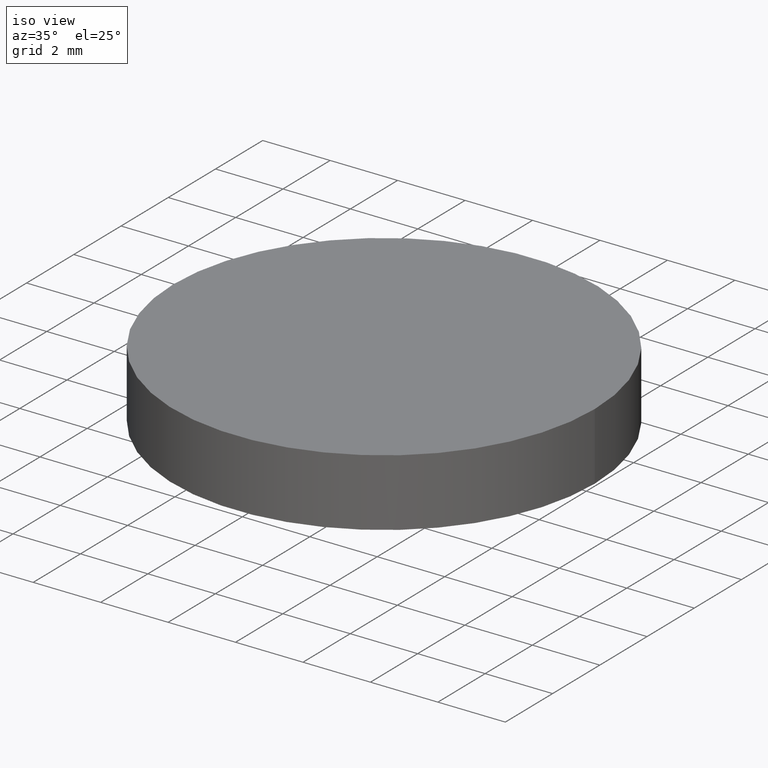
[diagram: clean part render]
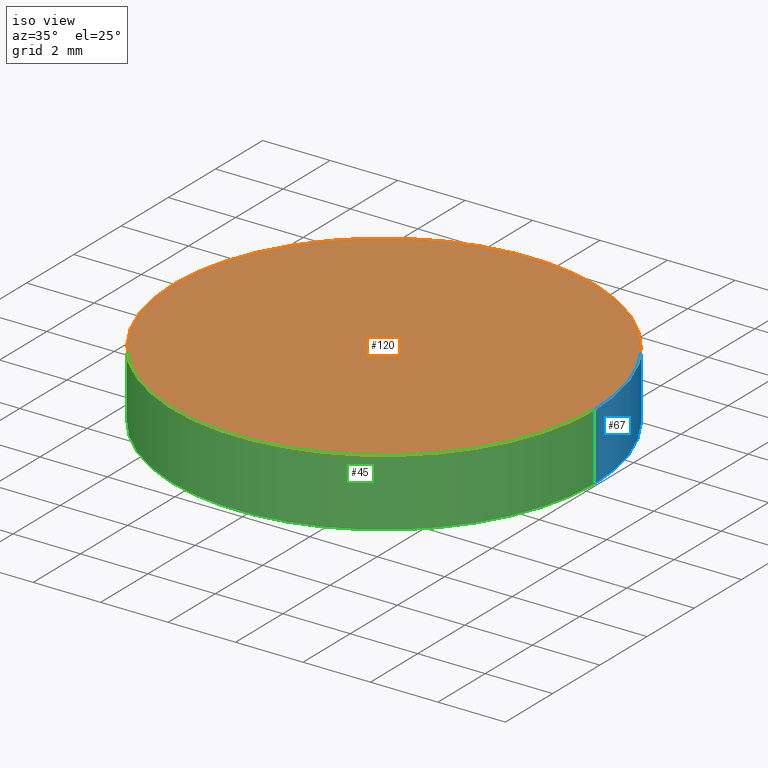
[diagram: same view with three faces highlighted in distinct colors, each labeled with its STEP entity id]
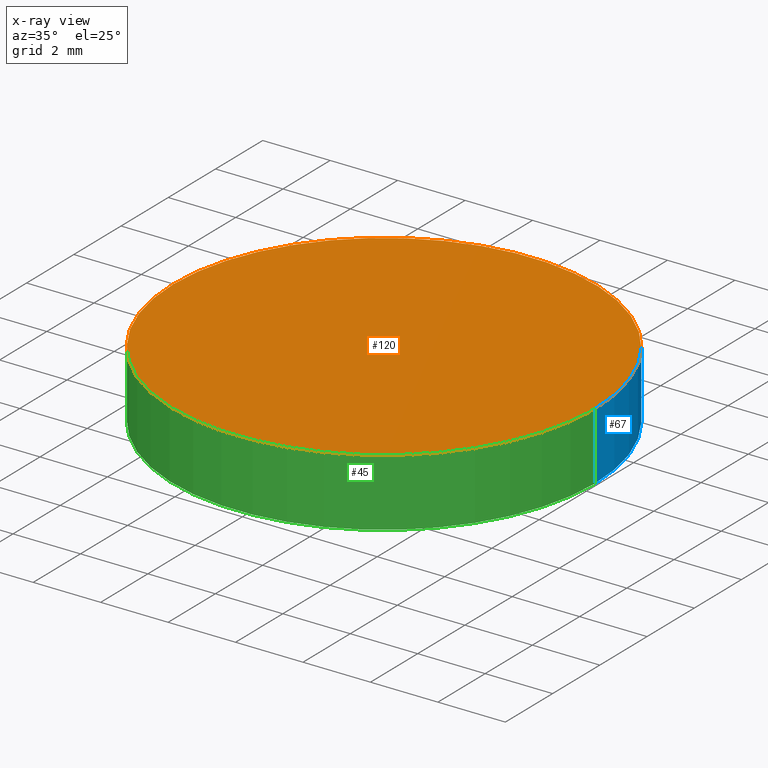
[diagram: x-ray of the same camera — body ghosted, the three highlighted faces saturated]
A machine part, iso view with three faces highlighted in distinct colors.
The next image is the same camera in x-ray (body ghosted, the three faces saturated) — at least one of them is partly hidden behind the body in this view.
Their STEP definitions:

[orange] entity #120 — the highlighted planar face has unit normal (0, 0, 1).
#2 = DIRECTION ( 'NONE',  ( 0.0000000000000000000, 0.0000000000000000000, 1.000000000000000000 ) ) ;
#6 = ORIENTED_EDGE ( 'NONE', *, *, #17, .T. ) ;
#9 = EDGE_LOOP ( 'NONE', ( #6, #85 ) ) ;
#15 = DIRECTION ( 'NONE',  ( 1.000000000000000000, 0.0000000000000000000, -0.0000000000000000000 ) ) ;
#17 = EDGE_CURVE ( 'NONE', #30, #31, #92, .T. ) ;
#19 = CARTESIAN_POINT ( 'NONE',  ( 6.249999999999998200, 7.654042494670955600E-016, 2.000000000000000000 ) ) ;
#30 = VERTEX_POINT ( 'NONE', #55 ) ;
#31 = VERTEX_POINT ( 'NONE', #19 ) ;
#33 = CARTESIAN_POINT ( 'NONE',  ( 0.0000000000000000000, 0.0000000000000000000, 2.000000000000000000 ) ) ;
#34 = DIRECTION ( 'NONE',  ( 0.0000000000000000000, 0.0000000000000000000, 1.000000000000000000 ) ) ;
#41 = DIRECTION ( 'NONE',  ( 0.0000000000000000000, 0.0000000000000000000, 1.000000000000000000 ) ) ;
#55 = CARTESIAN_POINT ( 'NONE',  ( -6.249999999999998200, 0.0000000000000000000, 2.000000000000000000 ) ) ;
#56 = AXIS2_PLACEMENT_3D ( 'NONE', #62, #2, #15 ) ;
#58 = CARTESIAN_POINT ( 'NONE',  ( 0.0000000000000000000, 0.0000000000000000000, 2.000000000000000000 ) ) ;
#59 = FACE_OUTER_BOUND ( 'NONE', #9, .T. ) ;
#62 = CARTESIAN_POINT ( 'NONE',  ( 0.0000000000000000000, 0.0000000000000000000, 2.000000000000000000 ) ) ;
#71 = PLANE ( 'NONE',  #56 ) ;
#73 = AXIS2_PLACEMENT_3D ( 'NONE', #33, #34, #109 ) ;
#85 = ORIENTED_EDGE ( 'NONE', *, *, #134, .T. ) ;
#92 = CIRCLE ( 'NONE', #140, 6.249999999999998200 ) ;
#109 = DIRECTION ( 'NONE',  ( -1.000000000000000000, 0.0000000000000000000, 0.0000000000000000000 ) ) ;
#117 = CIRCLE ( 'NONE', #73, 6.249999999999998200 ) ;
#120 = ADVANCED_FACE ( 'NONE', ( #59 ), #71, .T. ) ;
#129 = DIRECTION ( 'NONE',  ( -1.000000000000000000, 0.0000000000000000000, 0.0000000000000000000 ) ) ;
#134 = EDGE_CURVE ( 'NONE', #31, #30, #117, .T. ) ;
#140 = AXIS2_PLACEMENT_3D ( 'NONE', #58, #41, #129 ) ;

[blue] entity #67 — the highlighted cylindrical surface (partial cylindrical patch) has radius 6.25 mm, axis along (-0, -0, -1).
#1 = VERTEX_POINT ( 'NONE', #77 ) ;
#10 = VECTOR ( 'NONE', #49, 1000.000000000000000 ) ;
#12 = CARTESIAN_POINT ( 'NONE',  ( -6.249999999999998200, 0.0000000000000000000, 2.000000000000000000 ) ) ;
#18 = CIRCLE ( 'NONE', #125, 6.249999999999998200 ) ;
#19 = CARTESIAN_POINT ( 'NONE',  ( 6.249999999999998200, 7.654042494670955600E-016, 2.000000000000000000 ) ) ;
#20 = VERTEX_POINT ( 'NONE', #21 ) ;
#21 = CARTESIAN_POINT ( 'NONE',  ( 6.249999999999998200, 7.654042494670955600E-016, 0.0000000000000000000 ) ) ;
#22 = DIRECTION ( 'NONE',  ( -0.0000000000000000000, -0.0000000000000000000, -1.000000000000000000 ) ) ;
#25 = DIRECTION ( 'NONE',  ( -1.000000000000000000, 0.0000000000000000000, 0.0000000000000000000 ) ) ;
#26 = DIRECTION ( 'NONE',  ( -1.000000000000000000, 0.0000000000000000000, 0.0000000000000000000 ) ) ;
#30 = VERTEX_POINT ( 'NONE', #55 ) ;
#31 = VERTEX_POINT ( 'NONE', #19 ) ;
#33 = CARTESIAN_POINT ( 'NONE',  ( 0.0000000000000000000, 0.0000000000000000000, 2.000000000000000000 ) ) ;
#34 = DIRECTION ( 'NONE',  ( 0.0000000000000000000, 0.0000000000000000000, 1.000000000000000000 ) ) ;
#38 = EDGE_CURVE ( 'NONE', #30, #1, #50, .T. ) ;
#39 = ORIENTED_EDGE ( 'NONE', *, *, #76, .T. ) ;
#42 = ORIENTED_EDGE ( 'NONE', *, *, #38, .F. ) ;
#49 = DIRECTION ( 'NONE',  ( -0.0000000000000000000, -0.0000000000000000000, -1.000000000000000000 ) ) ;
#50 = LINE ( 'NONE', #12, #52 ) ;
#52 = VECTOR ( 'NONE', #22, 1000.000000000000000 ) ;
#54 = CYLINDRICAL_SURFACE ( 'NONE', #137, 6.249999999999998200 ) ;
#55 = CARTESIAN_POINT ( 'NONE',  ( -6.249999999999998200, 0.0000000000000000000, 2.000000000000000000 ) ) ;
#61 = ORIENTED_EDGE ( 'NONE', *, *, #127, .T. ) ;
#66 = EDGE_LOOP ( 'NONE', ( #103, #61, #39, #42 ) ) ;
#67 = ADVANCED_FACE ( 'NONE', ( #74 ), #54, .T. ) ;
#73 = AXIS2_PLACEMENT_3D ( 'NONE', #33, #34, #109 ) ;
#74 = FACE_OUTER_BOUND ( 'NONE', #66, .T. ) ;
#76 = EDGE_CURVE ( 'NONE', #20, #1, #18, .T. ) ;
#77 = CARTESIAN_POINT ( 'NONE',  ( -6.249999999999998200, 0.0000000000000000000, 0.0000000000000000000 ) ) ;
#84 = CARTESIAN_POINT ( 'NONE',  ( 0.0000000000000000000, 0.0000000000000000000, 0.0000000000000000000 ) ) ;
#91 = CARTESIAN_POINT ( 'NONE',  ( 0.0000000000000000000, 0.0000000000000000000, 2.000000000000000000 ) ) ;
#102 = CARTESIAN_POINT ( 'NONE',  ( 6.249999999999998200, 7.654042494670955600E-016, 2.000000000000000000 ) ) ;
#103 = ORIENTED_EDGE ( 'NONE', *, *, #134, .F. ) ;
#109 = DIRECTION ( 'NONE',  ( -1.000000000000000000, 0.0000000000000000000, 0.0000000000000000000 ) ) ;
#116 = LINE ( 'NONE', #102, #10 ) ;
#117 = CIRCLE ( 'NONE', #73, 6.249999999999998200 ) ;
#123 = DIRECTION ( 'NONE',  ( 0.0000000000000000000, 0.0000000000000000000, 1.000000000000000000 ) ) ;
#125 = AXIS2_PLACEMENT_3D ( 'NONE', #84, #123, #26 ) ;
#127 = EDGE_CURVE ( 'NONE', #31, #20, #116, .T. ) ;
#131 = DIRECTION ( 'NONE',  ( -0.0000000000000000000, -0.0000000000000000000, -1.000000000000000000 ) ) ;
#134 = EDGE_CURVE ( 'NONE', #31, #30, #117, .T. ) ;
#137 = AXIS2_PLACEMENT_3D ( 'NONE', #91, #131, #25 ) ;

[green] entity #45 — the highlighted cylindrical surface (partial cylindrical patch) has radius 6.25 mm, axis along (-0, -0, -1).
#1 = VERTEX_POINT ( 'NONE', #77 ) ;
#10 = VECTOR ( 'NONE', #49, 1000.000000000000000 ) ;
#12 = CARTESIAN_POINT ( 'NONE',  ( -6.249999999999998200, 0.0000000000000000000, 2.000000000000000000 ) ) ;
#16 = CARTESIAN_POINT ( 'NONE',  ( 0.0000000000000000000, 0.0000000000000000000, 0.0000000000000000000 ) ) ;
#17 = EDGE_CURVE ( 'NONE', #30, #31, #92, .T. ) ;
#19 = CARTESIAN_POINT ( 'NONE',  ( 6.249999999999998200, 7.654042494670955600E-016, 2.000000000000000000 ) ) ;
#20 = VERTEX_POINT ( 'NONE', #21 ) ;
#21 = CARTESIAN_POINT ( 'NONE',  ( 6.249999999999998200, 7.654042494670955600E-016, 0.0000000000000000000 ) ) ;
#22 = DIRECTION ( 'NONE',  ( -0.0000000000000000000, -0.0000000000000000000, -1.000000000000000000 ) ) ;
#23 = ORIENTED_EDGE ( 'NONE', *, *, #38, .T. ) ;
#28 = EDGE_LOOP ( 'NONE', ( #136, #79, #23, #135 ) ) ;
#30 = VERTEX_POINT ( 'NONE', #55 ) ;
#31 = VERTEX_POINT ( 'NONE', #19 ) ;
#38 = EDGE_CURVE ( 'NONE', #30, #1, #50, .T. ) ;
#41 = DIRECTION ( 'NONE',  ( 0.0000000000000000000, 0.0000000000000000000, 1.000000000000000000 ) ) ;
#45 = ADVANCED_FACE ( 'NONE', ( #128 ), #80, .T. ) ;
#46 = CARTESIAN_POINT ( 'NONE',  ( 0.0000000000000000000, 0.0000000000000000000, 2.000000000000000000 ) ) ;
#48 = DIRECTION ( 'NONE',  ( -1.000000000000000000, 0.0000000000000000000, 0.0000000000000000000 ) ) ;
#49 = DIRECTION ( 'NONE',  ( -0.0000000000000000000, -0.0000000000000000000, -1.000000000000000000 ) ) ;
#50 = LINE ( 'NONE', #12, #52 ) ;
#52 = VECTOR ( 'NONE', #22, 1000.000000000000000 ) ;
#55 = CARTESIAN_POINT ( 'NONE',  ( -6.249999999999998200, 0.0000000000000000000, 2.000000000000000000 ) ) ;
#58 = CARTESIAN_POINT ( 'NONE',  ( 0.0000000000000000000, 0.0000000000000000000, 2.000000000000000000 ) ) ;
#63 = DIRECTION ( 'NONE',  ( -1.000000000000000000, 0.0000000000000000000, 0.0000000000000000000 ) ) ;
#65 = AXIS2_PLACEMENT_3D ( 'NONE', #46, #113, #48 ) ;
#77 = CARTESIAN_POINT ( 'NONE',  ( -6.249999999999998200, 0.0000000000000000000, 0.0000000000000000000 ) ) ;
#79 = ORIENTED_EDGE ( 'NONE', *, *, #17, .F. ) ;
#80 = CYLINDRICAL_SURFACE ( 'NONE', #65, 6.249999999999998200 ) ;
#86 = EDGE_CURVE ( 'NONE', #1, #20, #87, .T. ) ;
#87 = CIRCLE ( 'NONE', #121, 6.249999999999998200 ) ;
#92 = CIRCLE ( 'NONE', #140, 6.249999999999998200 ) ;
#102 = CARTESIAN_POINT ( 'NONE',  ( 6.249999999999998200, 7.654042494670955600E-016, 2.000000000000000000 ) ) ;
#111 = DIRECTION ( 'NONE',  ( 0.0000000000000000000, 0.0000000000000000000, 1.000000000000000000 ) ) ;
#113 = DIRECTION ( 'NONE',  ( -0.0000000000000000000, -0.0000000000000000000, -1.000000000000000000 ) ) ;
#116 = LINE ( 'NONE', #102, #10 ) ;
#121 = AXIS2_PLACEMENT_3D ( 'NONE', #16, #111, #63 ) ;
#127 = EDGE_CURVE ( 'NONE', #31, #20, #116, .T. ) ;
#128 = FACE_OUTER_BOUND ( 'NONE', #28, .T. ) ;
#129 = DIRECTION ( 'NONE',  ( -1.000000000000000000, 0.0000000000000000000, 0.0000000000000000000 ) ) ;
#135 = ORIENTED_EDGE ( 'NONE', *, *, #86, .T. ) ;
#136 = ORIENTED_EDGE ( 'NONE', *, *, #127, .F. ) ;
#140 = AXIS2_PLACEMENT_3D ( 'NONE', #58, #41, #129 ) ;